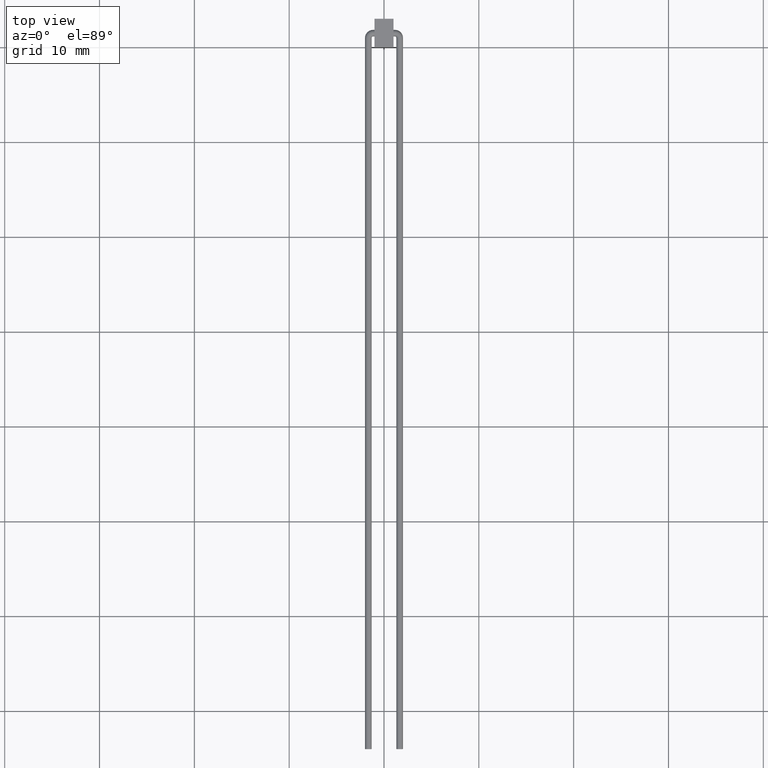
[diagram: clean part render]
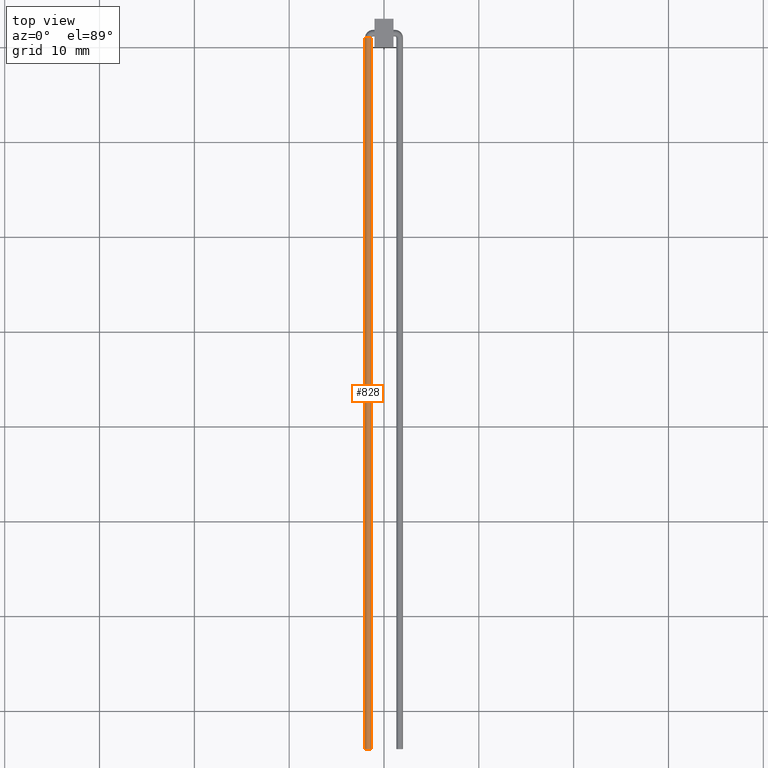
[diagram: same view with one face highlighted and labeled with its STEP entity id]
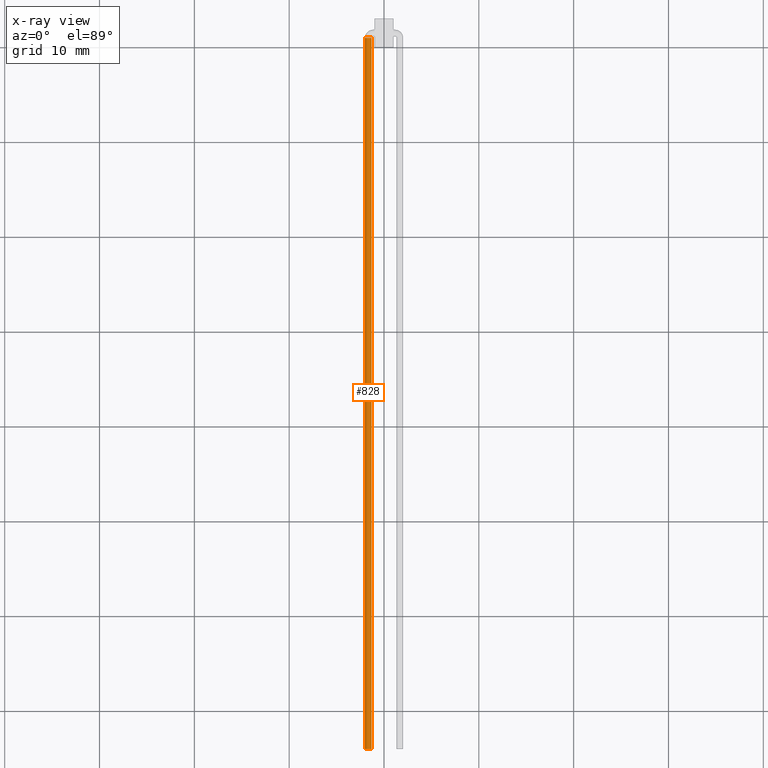
[diagram: x-ray of the same camera — body ghosted, the highlighted face saturated]
A machine part, top view. The second image highlights one B-rep face of the part: STEP entity #828.
The next image is the same camera in x-ray: the body ghosted, the highlighted face saturated — about 0% of this face is hidden behind the body in this view.
In plain terms, the highlighted cylindrical surface (edge-blend (fillet) strip) has radius 0.35 mm, axis along (0, -1, 0).
Its self-contained STEP definition (entity closure, byte-faithful):
#35 = CARTESIAN_POINT ( 'NONE',  ( -1.652776169258563854, -74.00000000000000000, -2.168404344971008868E-16 ) ) ;
#84 = FACE_OUTER_BOUND ( 'NONE', #483, .T. ) ;
#91 = DIRECTION ( 'NONE',  ( 0.0000000000000000000, -1.000000000000000000, 0.0000000000000000000 ) ) ;
#121 = CARTESIAN_POINT ( 'NONE',  ( -1.302776169258573091, 1.000000000000000222, -2.168404344971008868E-16 ) ) ;
#135 = EDGE_CURVE ( 'NONE', #823, #554, #992, .T. ) ;
#157 = ORIENTED_EDGE ( 'NONE', *, *, #949, .T. ) ;
#181 = CARTESIAN_POINT ( 'NONE',  ( -2.002776169258573269, 1.000000000000000000, -1.739777965269429292E-16 ) ) ;
#204 = VECTOR ( 'NONE', #237, 1000.000000000000000 ) ;
#237 = DIRECTION ( 'NONE',  ( 1.243218491116711833E-16, -1.000000000000000000, 0.0000000000000000000 ) ) ;
#247 = CARTESIAN_POINT ( 'NONE',  ( -1.652776169258573180, 1.000000000000000000, -2.168404344971008868E-16 ) ) ;
#315 = ORIENTED_EDGE ( 'NONE', *, *, #776, .F. ) ;
#344 = VERTEX_POINT ( 'NONE', #181 ) ;
#375 = VECTOR ( 'NONE', #671, 1000.000000000000000 ) ;
#387 = DIRECTION ( 'NONE',  ( 1.243218491116711833E-16, -1.000000000000000000, 0.0000000000000000000 ) ) ;
#394 = CYLINDRICAL_SURFACE ( 'NONE', #837, 0.3500000000000000333 ) ;
#399 = LINE ( 'NONE', #912, #204 ) ;
#405 = DIRECTION ( 'NONE',  ( 1.243218491116711833E-16, -1.000000000000000000, 0.0000000000000000000 ) ) ;
#477 = DIRECTION ( 'NONE',  ( 0.0000000000000000000, 0.0000000000000000000, 1.000000000000000000 ) ) ;
#483 = EDGE_LOOP ( 'NONE', ( #157, #906, #315, #800 ) ) ;
#509 = EDGE_CURVE ( 'NONE', #344, #701, #399, .T. ) ;
#531 = AXIS2_PLACEMENT_3D ( 'NONE', #247, #91, #543 ) ;
#543 = DIRECTION ( 'NONE',  ( 0.0000000000000000000, 0.0000000000000000000, 1.000000000000000000 ) ) ;
#554 = VERTEX_POINT ( 'NONE', #845 ) ;
#609 = AXIS2_PLACEMENT_3D ( 'NONE', #35, #405, #477 ) ;
#617 = CARTESIAN_POINT ( 'NONE',  ( -1.302776169258573091, 1.000000000000000000, -2.168404344971008868E-16 ) ) ;
#632 = CIRCLE ( 'NONE', #609, 0.3499999999999999778 ) ;
#636 = CARTESIAN_POINT ( 'NONE',  ( -1.652776169258573180, 1.000000000000000222, -2.168404344971008868E-16 ) ) ;
#671 = DIRECTION ( 'NONE',  ( 1.243218491116711833E-16, -1.000000000000000000, 0.0000000000000000000 ) ) ;
#701 = VERTEX_POINT ( 'NONE', #778 ) ;
#776 = EDGE_CURVE ( 'NONE', #554, #701, #632, .T. ) ;
#778 = CARTESIAN_POINT ( 'NONE',  ( -2.002776169258563499, -74.00000000000000000, -1.739777965269434962E-16 ) ) ;
#800 = ORIENTED_EDGE ( 'NONE', *, *, #135, .F. ) ;
#808 = CIRCLE ( 'NONE', #531, 0.3499999999999999778 ) ;
#814 = DIRECTION ( 'NONE',  ( 1.000000000000000000, 0.0000000000000000000, 0.0000000000000000000 ) ) ;
#823 = VERTEX_POINT ( 'NONE', #617 ) ;
#828 = ADVANCED_FACE ( 'NONE', ( #84 ), #394, .T. ) ;
#837 = AXIS2_PLACEMENT_3D ( 'NONE', #636, #387, #814 ) ;
#845 = CARTESIAN_POINT ( 'NONE',  ( -1.302776169258563765, -74.00000000000000000, -2.168404344971008868E-16 ) ) ;
#906 = ORIENTED_EDGE ( 'NONE', *, *, #509, .T. ) ;
#912 = CARTESIAN_POINT ( 'NONE',  ( -2.002776169258573269, 1.000000000000000222, -1.739777965269435209E-16 ) ) ;
#949 = EDGE_CURVE ( 'NONE', #823, #344, #808, .T. ) ;
#992 = LINE ( 'NONE', #121, #375 ) ;